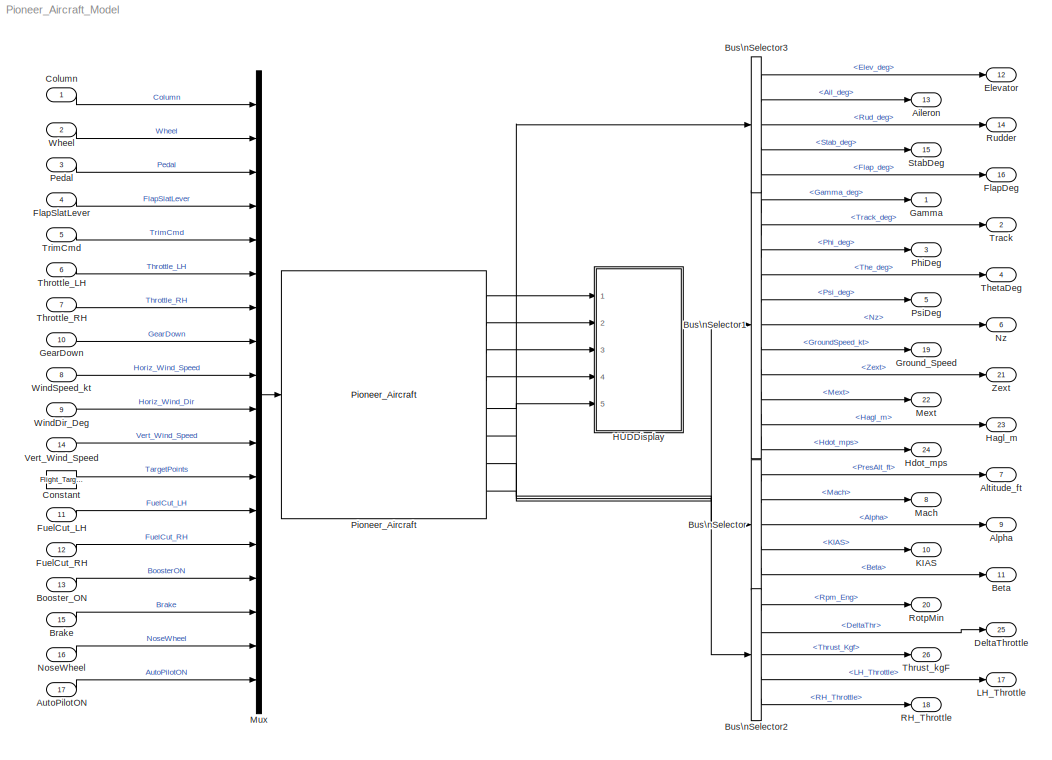
MODEL Pioneer_Aircraft_Model
KIND model
CONFIG AbsTol = auto
CONFIG FixedStep = Flight_TimeStep
CONFIG MaxStep = 0.1
CONFIG MinStep = 0.001
CONFIG RelTol = 1e-3
CONFIG Solver = ode4
CONFIG SolverMode = SingleTasking
CONFIG StartTime = 0.0
CONFIG StopTime = 1600
BLOCK [Outport] Aileron
  InitialOutput = []
  OutputWhenDisabled = held
  Port = 13
BLOCK [Outport] Alpha
  InitialOutput = []
  OutputWhenDisabled = held
  Port = 9
BLOCK [Outport] Altitude_ft
  InitialOutput = []
  OutputWhenDisabled = held
  Port = 7
BLOCK [Inport] AutoPilotON
  Interpolate = on
  LatchInput = off
  Port = 17
BLOCK [Outport] Beta
  InitialOutput = []
  OutputWhenDisabled = held
  Port = 11
BLOCK [Inport] Booster_ON
  Interpolate = on
  LatchInput = off
  Port = 13
BLOCK [Inport] Brake
  Interpolate = on
  LatchInput = off
  Port = 15
BLOCK [BusSelector] Bus\nSelector
  MuxedOutput = off
  OutputSignals = PresAlt_ft,Mach,Alpha,KIAS,Beta
  Ports = [1, 5]
BLOCK [BusSelector] Bus\nSelector1
  MuxedOutput = off
  OutputSignals = Gamma_deg,Track_deg,Phi_deg,The_deg,Psi_deg,Nz,GroundSpeed_kt,Zext,Mext,Hagl_m,Hdot_mps
  Ports = [1, 11]
BLOCK [BusSelector] Bus\nSelector2
  MuxedOutput = off
  OutputSignals = Rpm_Eng,DeltaThr,Thrust_Kgf,LH_Throttle,RH_Throttle
  Ports = [1, 5]
BLOCK [BusSelector] Bus\nSelector3
  MuxedOutput = off
  OutputSignals = Elev_deg,Ail_deg,Rud_deg,Stab_deg,Flap_deg
  Ports = [1, 5]
BLOCK [Inport] Column
  Interpolate = on
  LatchInput = off
  Port = 1
BLOCK [Constant] Constant
  Value = Flight_TargetPoints
  VectorParams1D = on
BLOCK [Outport] DeltaThrottle
  InitialOutput = []
  OutputWhenDisabled = held
  Port = 25
BLOCK [Outport] Elevator
  InitialOutput = []
  OutputWhenDisabled = held
  Port = 12
BLOCK [Outport] FlapDeg
  InitialOutput = []
  OutputWhenDisabled = held
  Port = 16
BLOCK [Inport] FlapSlatLever
  Interpolate = on
  LatchInput = off
  Port = 4
BLOCK [Inport] FuelCut_LH
  Interpolate = on
  LatchInput = off
  Port = 11
BLOCK [Inport] FuelCut_RH
  Interpolate = on
  LatchInput = off
  Port = 12
BLOCK [Outport] Gamma
  InitialOutput = []
  OutputWhenDisabled = held
  Port = 1
BLOCK [Inport] GearDown
  Interpolate = on
  LatchInput = off
  Port = 10
BLOCK [Outport] Ground_Speed
  InitialOutput = []
  OutputWhenDisabled = held
  Port = 19
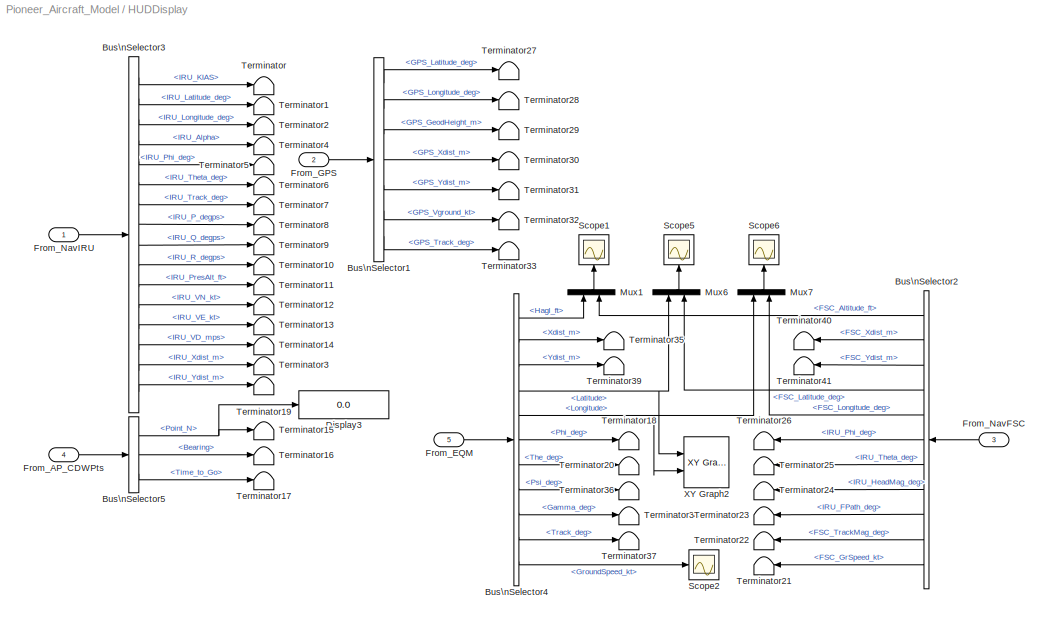
BLOCK [SubSystem] HUDDisplay
  Ports = [5]
  RTWFcnNameOpts = Auto
  RTWFileNameOpts = Auto
  RTWSystemCode = Auto
  ShowPortLabels = on
  TreatAsAtomicUnit = off
BLOCK [BusSelector] HUDDisplay/Bus\nSelector1
  MuxedOutput = off
  OutputSignals = GPS_Latitude_deg,GPS_Longitude_deg,GPS_GeodHeight_m,GPS_Xdist_m,GPS_Ydist_m,GPS_Vground_kt,GPS_Track_deg
  Ports = [1, 7]
BLOCK [BusSelector] HUDDisplay/Bus\nSelector2
  MuxedOutput = off
  OutputSignals = FSC_Altitude_ft,FSC_Xdist_m,FSC_Ydist_m,FSC_Latitude_deg,FSC_Longitude_deg,IRU_Phi_deg,IRU_Theta_deg,IRU_HeadMag_deg,IRU_FPath_deg,FSC_TrackMag_deg,FSC_GrSpeed_kt
  Ports = [1, 11]
BLOCK [BusSelector] HUDDisplay/Bus\nSelector3
  MuxedOutput = off
  OutputSignals = IRU_KIAS,IRU_Latitude_deg,IRU_Longitude_deg,IRU_Alpha,IRU_Phi_deg,IRU_Theta_deg,IRU_Track_deg,IRU_P_degps,IRU_Q_degps,IRU_R_degps,IRU_PresAlt_ft,IRU_VN_kt,IRU_VE_kt,IRU_VD_mps,IRU_Xdist_m,IRU_Ydist_m
  Ports = [1, 16]
BLOCK [BusSelector] HUDDisplay/Bus\nSelector4
  MuxedOutput = off
  OutputSignals = Hagl_ft,Xdist_m,Ydist_m,Latitude,Longitude,Phi_deg,The_deg,Psi_deg,Gamma_deg,Track_deg,GroundSpeed_kt
  Ports = [1, 11]
BLOCK [BusSelector] HUDDisplay/Bus\nSelector5
  MuxedOutput = off
  OutputSignals = Point_N,Bearing,Time_to_Go
  Ports = [1, 3]
BLOCK [Display] HUDDisplay/Display3
  Decimation = 50
  Floating = off
  Format = short
  Ports = [1]
  SampleTime = -1
BLOCK [Inport] HUDDisplay/From_AP_CDWPts
  Interpolate = on
  LatchInput = off
  Port = 4
BLOCK [Inport] HUDDisplay/From_EQM
  Interpolate = on
  LatchInput = off
  Port = 5
BLOCK [Inport] HUDDisplay/From_GPS
  Interpolate = on
  LatchInput = off
  Port = 2
BLOCK [Inport] HUDDisplay/From_NavFSC
  Interpolate = on
  LatchInput = off
  Port = 3
BLOCK [Inport] HUDDisplay/From_NavIRU
  Interpolate = on
  LatchInput = off
  Port = 1
BLOCK [Mux] HUDDisplay/Mux1
  DisplayOption = bar
  Inputs = 2
  Ports = [2, 1]
BLOCK [Mux] HUDDisplay/Mux6
  DisplayOption = bar
  Inputs = 2
  Ports = [2, 1]
BLOCK [Mux] HUDDisplay/Mux7
  DisplayOption = bar
  Inputs = 2
  Ports = [2, 1]
BLOCK [Scope] HUDDisplay/Scope1
  DataFormat = StructureWithTime
  Decimation = 10
  Floating = off
  Grid = on
  LimitDataPoints = on
  MaxDataPoints = 5000
  NumInputPorts = 1
  Ports = [1]
  SampleInput = off
  SampleTime = 0
  SaveName = ScopeData3
  SaveToWorkspace = off
  TickLabels = OneTimeTick
  TimeRange = auto
  YMax = 565
  YMin = 495
  ZoomMode = on
BLOCK [Scope] HUDDisplay/Scope2
  DataFormat = StructureWithTime
  Decimation = 10
  Floating = off
  Grid = on
  LimitDataPoints = on
  MaxDataPoints = 5000
  NumInputPorts = 1
  Ports = [1]
  SampleInput = off
  SampleTime = 0
  SaveName = ScopeData1
  SaveToWorkspace = off
  TickLabels = OneTimeTick
  TimeRange = auto
  YMax = 120
  YMin = 65
  ZoomMode = on
BLOCK [Scope] HUDDisplay/Scope5
  DataFormat = StructureWithTime
  Decimation = 10
  Floating = off
  Grid = on
  LimitDataPoints = on
  MaxDataPoints = 5000
  NumInputPorts = 1
  Ports = [1]
  SampleInput = off
  SampleTime = 0
  SaveName = ScopeData6
  SaveToWorkspace = off
  TickLabels = OneTimeTick
  TimeRange = auto
  YMax = 29.8075
  YMin = 29.785
  ZoomMode = on
BLOCK [Scope] HUDDisplay/Scope6
  DataFormat = StructureWithTime
  Decimation = 10
  Floating = off
  Grid = on
  LimitDataPoints = on
  MaxDataPoints = 5000
  NumInputPorts = 1
  Ports = [1]
  SampleInput = off
  SampleTime = 0
  SaveName = ScopeData7
  SaveToWorkspace = off
  TickLabels = OneTimeTick
  TimeRange = auto
  YMax = 150.705
  YMin = 150.695
  ZoomMode = on
BLOCK [Terminator] HUDDisplay/Terminator
BLOCK [Terminator] HUDDisplay/Terminator1
BLOCK [Terminator] HUDDisplay/Terminator10
BLOCK [Terminator] HUDDisplay/Terminator11
BLOCK [Terminator] HUDDisplay/Terminator12
BLOCK [Terminator] HUDDisplay/Terminator13
BLOCK [Terminator] HUDDisplay/Terminator14
BLOCK [Terminator] HUDDisplay/Terminator15
BLOCK [Terminator] HUDDisplay/Terminator16
BLOCK [Terminator] HUDDisplay/Terminator17
BLOCK [Terminator] HUDDisplay/Terminator18
BLOCK [Terminator] HUDDisplay/Terminator19
BLOCK [Terminator] HUDDisplay/Terminator2
BLOCK [Terminator] HUDDisplay/Terminator20
BLOCK [Terminator] HUDDisplay/Terminator21
BLOCK [Terminator] HUDDisplay/Terminator22
BLOCK [Terminator] HUDDisplay/Terminator23
BLOCK [Terminator] HUDDisplay/Terminator24
BLOCK [Terminator] HUDDisplay/Terminator25
BLOCK [Terminator] HUDDisplay/Terminator26
BLOCK [Terminator] HUDDisplay/Terminator27
BLOCK [Terminator] HUDDisplay/Terminator28
BLOCK [Terminator] HUDDisplay/Terminator29
BLOCK [Terminator] HUDDisplay/Terminator3
BLOCK [Terminator] HUDDisplay/Terminator30
BLOCK [Terminator] HUDDisplay/Terminator31
BLOCK [Terminator] HUDDisplay/Terminator32
BLOCK [Terminator] HUDDisplay/Terminator33
BLOCK [Terminator] HUDDisplay/Terminator34
BLOCK [Terminator] HUDDisplay/Terminator35
BLOCK [Terminator] HUDDisplay/Terminator36
BLOCK [Terminator] HUDDisplay/Terminator37
BLOCK [Terminator] HUDDisplay/Terminator39
BLOCK [Terminator] HUDDisplay/Terminator4
BLOCK [Terminator] HUDDisplay/Terminator40
BLOCK [Terminator] HUDDisplay/Terminator41
BLOCK [Terminator] HUDDisplay/Terminator5
BLOCK [Terminator] HUDDisplay/Terminator6
BLOCK [Terminator] HUDDisplay/Terminator7
BLOCK [Terminator] HUDDisplay/Terminator8
BLOCK [Terminator] HUDDisplay/Terminator9
BLOCK [Reference] HUDDisplay/XY Graph2  REF=simulink3/Sinks/XY Graph
  Ports = [2]
  SourceBlock = simulink3/Sinks/XY Graph
  SourceType = XY scope.
  st = -1
  xmax = 31
  xmin = 30
  ymax = 151
  ymin = 150
BLOCK [Outport] Hagl_m
  InitialOutput = []
  OutputWhenDisabled = held
  Port = 23
BLOCK [Outport] Hdot_mps
  InitialOutput = []
  OutputWhenDisabled = held
  Port = 24
BLOCK [Outport] KIAS
  InitialOutput = []
  OutputWhenDisabled = held
  Port = 10
BLOCK [Outport] LH_Throttle
  InitialOutput = []
  OutputWhenDisabled = held
  Port = 17
BLOCK [Outport] Mach
  InitialOutput = []
  OutputWhenDisabled = held
  Port = 8
BLOCK [Outport] Mext
  InitialOutput = []
  OutputWhenDisabled = held
  Port = 22
BLOCK [Mux] Mux
  DisplayOption = bar
  Inputs = 18
  Ports = [18, 1]
BLOCK [Inport] NoseWheel
  Interpolate = on
  LatchInput = off
  Port = 16
BLOCK [Outport] Nz
  InitialOutput = []
  OutputWhenDisabled = held
  Port = 6
BLOCK [Inport] Pedal
  Interpolate = on
  LatchInput = off
  Port = 3
BLOCK [Outport] PhiDeg
  InitialOutput = []
  OutputWhenDisabled = held
  Port = 3
BLOCK [Reference] Pioneer_Aircraft  REF=AeroLib/Aircraft/Pioneer_Aircraft
  Ports = [1, 8]
  SourceBlock = AeroLib/Aircraft/Pioneer_Aircraft
BLOCK [Outport] PsiDeg
  InitialOutput = []
  OutputWhenDisabled = held
  Port = 5
BLOCK [Outport] RH_Throttle
  InitialOutput = []
  OutputWhenDisabled = held
  Port = 18
BLOCK [Outport] RotpMin
  InitialOutput = []
  OutputWhenDisabled = held
  Port = 20
BLOCK [Outport] Rudder
  InitialOutput = []
  OutputWhenDisabled = held
  Port = 14
BLOCK [Outport] StabDeg
  InitialOutput = []
  OutputWhenDisabled = held
  Port = 15
BLOCK [Outport] ThetaDeg
  InitialOutput = []
  OutputWhenDisabled = held
  Port = 4
BLOCK [Inport] Throttle_LH
  Interpolate = on
  LatchInput = off
  Port = 6
BLOCK [Inport] Throttle_RH
  Interpolate = on
  LatchInput = off
  Port = 7
BLOCK [Outport] Thrust_kgF
  InitialOutput = []
  OutputWhenDisabled = held
  Port = 26
BLOCK [Outport] Track
  InitialOutput = []
  OutputWhenDisabled = held
  Port = 2
BLOCK [Inport] TrimCmd
  Interpolate = on
  LatchInput = off
  Port = 5
BLOCK [Inport] Vert_Wind_Speed
  Interpolate = on
  LatchInput = off
  Port = 14
BLOCK [Inport] Wheel
  Interpolate = on
  LatchInput = off
  Port = 2
BLOCK [Inport] WindDir_Deg
  Interpolate = on
  LatchInput = off
  Port = 9
BLOCK [Inport] WindSpeed_kt
  Interpolate = on
  LatchInput = off
  Port = 8
BLOCK [Outport] Zext
  InitialOutput = []
  OutputWhenDisabled = held
  Port = 21
LINE AutoPilotON:1 -> Mux:18
LINE Booster_ON:1 -> Mux:15
LINE Brake:1 -> Mux:16
LINE Bus\nSelector1:1 -> Gamma:1
LINE Bus\nSelector1:10 -> Hagl_m:1
LINE Bus\nSelector1:11 -> Hdot_mps:1
LINE Bus\nSelector1:2 -> Track:1
LINE Bus\nSelector1:3 -> PhiDeg:1
LINE Bus\nSelector1:4 -> ThetaDeg:1
LINE Bus\nSelector1:5 -> PsiDeg:1
LINE Bus\nSelector1:6 -> Nz:1
LINE Bus\nSelector1:7 -> Ground_Speed:1
LINE Bus\nSelector1:8 -> Zext:1
LINE Bus\nSelector1:9 -> Mext:1
LINE Bus\nSelector2:1 -> RotpMin:1
LINE Bus\nSelector2:2 -> DeltaThrottle:1
LINE Bus\nSelector2:3 -> Thrust_kgF:1
LINE Bus\nSelector2:4 -> LH_Throttle:1
LINE Bus\nSelector2:5 -> RH_Throttle:1
LINE Bus\nSelector3:1 -> Elevator:1
LINE Bus\nSelector3:2 -> Aileron:1
LINE Bus\nSelector3:3 -> Rudder:1
LINE Bus\nSelector3:4 -> StabDeg:1
LINE Bus\nSelector3:5 -> FlapDeg:1
LINE Bus\nSelector:1 -> Altitude_ft:1
LINE Bus\nSelector:2 -> Mach:1
LINE Bus\nSelector:3 -> Alpha:1
LINE Bus\nSelector:4 -> KIAS:1
LINE Bus\nSelector:5 -> Beta:1
LINE Column:1 -> Mux:1
LINE Constant:1 -> Mux:12
LINE FlapSlatLever:1 -> Mux:4
LINE FuelCut_LH:1 -> Mux:13
LINE FuelCut_RH:1 -> Mux:14
LINE GearDown:1 -> Mux:8
LINE HUDDisplay/Bus\nSelector1:1 -> HUDDisplay/Terminator27:1
LINE HUDDisplay/Bus\nSelector1:2 -> HUDDisplay/Terminator28:1
LINE HUDDisplay/Bus\nSelector1:3 -> HUDDisplay/Terminator29:1
LINE HUDDisplay/Bus\nSelector1:4 -> HUDDisplay/Terminator30:1
LINE HUDDisplay/Bus\nSelector1:5 -> HUDDisplay/Terminator31:1
LINE HUDDisplay/Bus\nSelector1:6 -> HUDDisplay/Terminator32:1
LINE HUDDisplay/Bus\nSelector1:7 -> HUDDisplay/Terminator33:1
LINE HUDDisplay/Bus\nSelector2:1 -> HUDDisplay/Mux1:2
LINE HUDDisplay/Bus\nSelector2:10 -> HUDDisplay/Terminator22:1
LINE HUDDisplay/Bus\nSelector2:11 -> HUDDisplay/Terminator21:1
LINE HUDDisplay/Bus\nSelector2:2 -> HUDDisplay/Terminator40:1
LINE HUDDisplay/Bus\nSelector2:3 -> HUDDisplay/Terminator41:1
LINE HUDDisplay/Bus\nSelector2:4 -> HUDDisplay/Mux6:2
LINE HUDDisplay/Bus\nSelector2:5 -> HUDDisplay/Mux7:2
LINE HUDDisplay/Bus\nSelector2:6 -> HUDDisplay/Terminator26:1
LINE HUDDisplay/Bus\nSelector2:7 -> HUDDisplay/Terminator25:1
LINE HUDDisplay/Bus\nSelector2:8 -> HUDDisplay/Terminator24:1
LINE HUDDisplay/Bus\nSelector2:9 -> HUDDisplay/Terminator23:1
LINE HUDDisplay/Bus\nSelector3:1 -> HUDDisplay/Terminator:1
LINE HUDDisplay/Bus\nSelector3:10 -> HUDDisplay/Terminator10:1
LINE HUDDisplay/Bus\nSelector3:11 -> HUDDisplay/Terminator11:1
LINE HUDDisplay/Bus\nSelector3:12 -> HUDDisplay/Terminator12:1
LINE HUDDisplay/Bus\nSelector3:13 -> HUDDisplay/Terminator13:1
LINE HUDDisplay/Bus\nSelector3:14 -> HUDDisplay/Terminator14:1
LINE HUDDisplay/Bus\nSelector3:15 -> HUDDisplay/Terminator3:1
LINE HUDDisplay/Bus\nSelector3:16 -> HUDDisplay/Terminator19:1
LINE HUDDisplay/Bus\nSelector3:2 -> HUDDisplay/Terminator1:1
LINE HUDDisplay/Bus\nSelector3:3 -> HUDDisplay/Terminator2:1
LINE HUDDisplay/Bus\nSelector3:4 -> HUDDisplay/Terminator4:1
LINE HUDDisplay/Bus\nSelector3:5 -> HUDDisplay/Terminator5:1
LINE HUDDisplay/Bus\nSelector3:6 -> HUDDisplay/Terminator6:1
LINE HUDDisplay/Bus\nSelector3:7 -> HUDDisplay/Terminator7:1
LINE HUDDisplay/Bus\nSelector3:8 -> HUDDisplay/Terminator8:1
LINE HUDDisplay/Bus\nSelector3:9 -> HUDDisplay/Terminator9:1
LINE HUDDisplay/Bus\nSelector4:1 -> HUDDisplay/Mux1:1
LINE HUDDisplay/Bus\nSelector4:10 -> HUDDisplay/Terminator37:1
LINE HUDDisplay/Bus\nSelector4:11 -> HUDDisplay/Scope2:1
LINE HUDDisplay/Bus\nSelector4:2 -> HUDDisplay/Terminator35:1
LINE HUDDisplay/Bus\nSelector4:3 -> HUDDisplay/Terminator39:1
NET HUDDisplay/Bus\nSelector4:4 -> HUDDisplay/Mux6:1, HUDDisplay/XY Graph2:1
NET HUDDisplay/Bus\nSelector4:5 -> HUDDisplay/Mux7:1, HUDDisplay/XY Graph2:2
LINE HUDDisplay/Bus\nSelector4:6 -> HUDDisplay/Terminator18:1
LINE HUDDisplay/Bus\nSelector4:7 -> HUDDisplay/Terminator20:1
LINE HUDDisplay/Bus\nSelector4:8 -> HUDDisplay/Terminator36:1
LINE HUDDisplay/Bus\nSelector4:9 -> HUDDisplay/Terminator34:1
NET HUDDisplay/Bus\nSelector5:1 -> HUDDisplay/Display3:1, HUDDisplay/Terminator15:1
LINE HUDDisplay/Bus\nSelector5:2 -> HUDDisplay/Terminator16:1
LINE HUDDisplay/Bus\nSelector5:3 -> HUDDisplay/Terminator17:1
LINE HUDDisplay/From_AP_CDWPts:1 -> HUDDisplay/Bus\nSelector5:1
LINE HUDDisplay/From_EQM:1 -> HUDDisplay/Bus\nSelector4:1
LINE HUDDisplay/From_GPS:1 -> HUDDisplay/Bus\nSelector1:1
LINE HUDDisplay/From_NavFSC:1 -> HUDDisplay/Bus\nSelector2:1
LINE HUDDisplay/From_NavIRU:1 -> HUDDisplay/Bus\nSelector3:1
LINE HUDDisplay/Mux1:1 -> HUDDisplay/Scope1:1
LINE HUDDisplay/Mux6:1 -> HUDDisplay/Scope5:1
LINE HUDDisplay/Mux7:1 -> HUDDisplay/Scope6:1
LINE Mux:1 -> Pioneer_Aircraft:1
LINE NoseWheel:1 -> Mux:17
LINE Pedal:1 -> Mux:3
LINE Pioneer_Aircraft:1 -> HUDDisplay:1
LINE Pioneer_Aircraft:2 -> HUDDisplay:2
LINE Pioneer_Aircraft:3 -> HUDDisplay:3
LINE Pioneer_Aircraft:4 -> HUDDisplay:4
LINE Pioneer_Aircraft:5 -> Bus\nSelector3:1
NET Pioneer_Aircraft:6 -> Bus\nSelector1:1, HUDDisplay:5
LINE Pioneer_Aircraft:7 -> Bus\nSelector:1
LINE Pioneer_Aircraft:8 -> Bus\nSelector2:1
LINE Throttle_LH:1 -> Mux:6
LINE Throttle_RH:1 -> Mux:7
LINE TrimCmd:1 -> Mux:5
LINE Vert_Wind_Speed:1 -> Mux:11
LINE Wheel:1 -> Mux:2
LINE WindDir_Deg:1 -> Mux:10
LINE WindSpeed_kt:1 -> Mux:9
note: NET lines group one-source signal fan-out (src -> all destinations, sorted); 1:1 wires keep LINE
